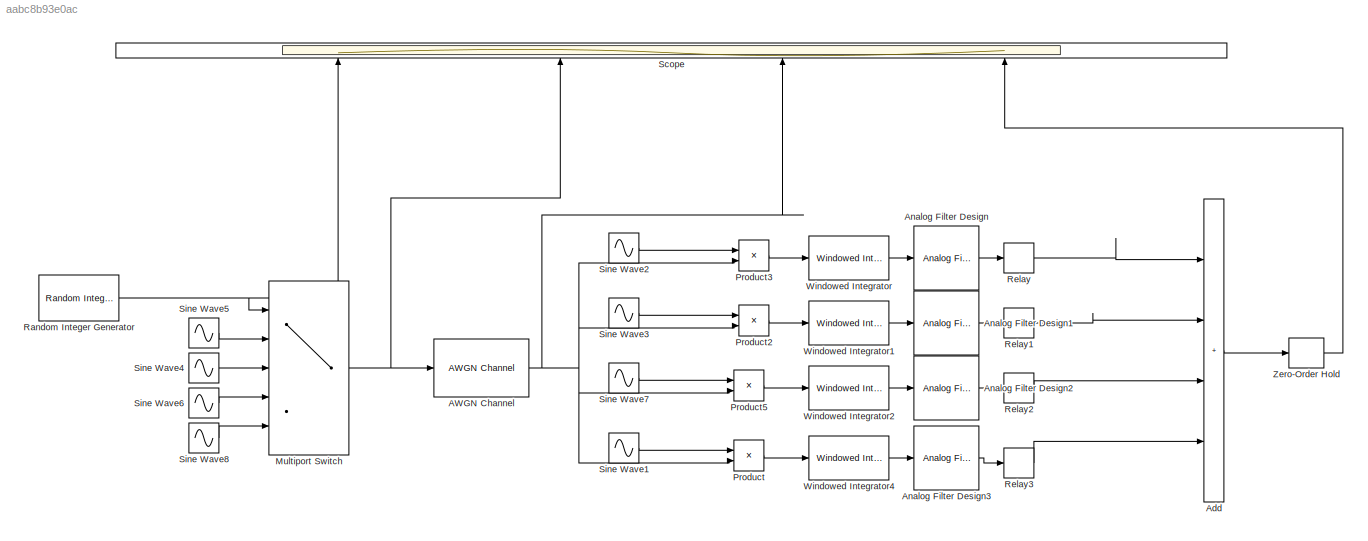
MODEL slx_aabc8b93e0ac
KIND model
CONFIG AbsTol = auto
CONFIG EnableMultiTasking = off
CONFIG FixedStep = auto
CONFIG MaxStep = auto
CONFIG MinStep = auto
CONFIG RelTol = 1e-3
CONFIG SampleTimeConstraint = Unconstrained
CONFIG SolverName = VariableStepAuto
CONFIG StartTime = 0.0
CONFIG StopTime = 0.001250
BLOCK [Reference] AWGN Channel  REF=commchan3/AWGN
Channel
  Ports = [1, 1]
  SourceBlock = commchan3/AWGN\nChannel
  SourceProductBaseCode = CM
  SourceType = AWGN Channel
  UserDataPersistent = on
BLOCK [Sum] Add
  IconShape = rectangular
  Inputs = ++++
  Ports = [4, 1]
BLOCK [Reference] Analog Filter Design  REF=dsparch4/Analog
Filter Design
  Ports = [1, 1]
  SourceBlock = dsparch4/Analog\nFilter Design
  SourceProductBaseCode = DS
  SourceType = Analog Filter Design
BLOCK [Reference] Analog Filter Design1  REF=dsparch4/Analog
Filter Design
  Ports = [1, 1]
  SourceBlock = dsparch4/Analog\nFilter Design
  SourceProductBaseCode = DS
  SourceType = Analog Filter Design
BLOCK [Reference] Analog Filter Design2  REF=dsparch4/Analog
Filter Design
  Ports = [1, 1]
  SourceBlock = dsparch4/Analog\nFilter Design
  SourceProductBaseCode = DS
  SourceType = Analog Filter Design
BLOCK [Reference] Analog Filter Design3  REF=dsparch4/Analog
Filter Design
  Ports = [1, 1]
  SourceBlock = dsparch4/Analog\nFilter Design
  SourceProductBaseCode = DS
  SourceType = Analog Filter Design
BLOCK [MultiPortSwitch] Multiport Switch
  DataPortOrder = Zero-based contiguous
  InputSameDT = off
  Inputs = 4
  Ports = [5, 1]
  SaturateOnIntegerOverflow = off
  zeroidx = on
BLOCK [Product] Product
  Ports = [2, 1]
BLOCK [Product] Product2
  Ports = [2, 1]
BLOCK [Product] Product3
  Ports = [2, 1]
BLOCK [Product] Product5
  Ports = [2, 1]
BLOCK [Reference] Random Integer Generator  REF=commrandsrc3/Random Integer
Generator
  Ports = [0, 1]
  SourceBlock = commrandsrc3/Random Integer\nGenerator
  SourceProductBaseCode = CM
  SourceType = Random Integer Generator
BLOCK [Relay] Relay
  OffSwitchValue = 5
  OnOutputValue = 0
  OnSwitchValue = 15
BLOCK [Relay] Relay1
  OffSwitchValue = 5
  OnSwitchValue = 15
BLOCK [Relay] Relay2
  OffSwitchValue = 5
  OnOutputValue = 2
  OnSwitchValue = 15
BLOCK [Relay] Relay3
  OffSwitchValue = 5
  OnOutputValue = 3
  OnSwitchValue = 15
BLOCK [Scope] Scope
  Floating = off
  NameLocation = right
  NumInputPorts = 4
  Ports = [4]
  ScopeSpecificationString = Simulink.scopes.TimeScopeBlockCfg('CurrentConfiguration', extmgr.ConfigurationSet(extmgr.Configuration('Core','General UI',true),extmgr.Configuration('Core','Source UI',true),extmgr.Configuration('Sources','WiredSimulink',true),extmgr.Configuration('Visuals','Time Domain',true,'SerializedDisplays',{struct('MinYLimReal','-1','MaxYLimReal','4','YLabelReal','','MinYLimMag','0.00000','MaxYLimMag','48....<+3393ch>
BLOCK [Sin] Sine Wave1
  Frequency = 2 * pi * 24 * 1000
  Phase = 3 * pi /2
  Ports = [0, 1]
  SampleTime = 0.000001
BLOCK [Sin] Sine Wave2
  Frequency = 2 * pi * 24 * 1000
  Ports = [0, 1]
  SampleTime = 0.000001
BLOCK [Sin] Sine Wave3
  Frequency = 2 * pi * 24 * 1000
  Phase = pi/2
  Ports = [0, 1]
  SampleTime = 0.000001
BLOCK [Sin] Sine Wave4
  Frequency = 2 * pi * 24 * 1000
  Phase = pi/2
  Ports = [0, 1]
  SampleTime = 0.000001
BLOCK [Sin] Sine Wave5
  Frequency = 2 * pi * 24 * 1000
  Ports = [0, 1]
  SampleTime = 0.000001
BLOCK [Sin] Sine Wave6
  Frequency = 2 * pi * 24 * 1000
  Phase = pi
  Ports = [0, 1]
  SampleTime = 0.000001
BLOCK [Sin] Sine Wave7
  Frequency = 2 * pi * 24 * 1000
  Phase = pi
  Ports = [0, 1]
  SampleTime = 0.000001
BLOCK [Sin] Sine Wave8
  Frequency = 2 * pi * 24 * 1000
  Phase = 3 * pi /2
  Ports = [0, 1]
  SampleTime = 0.000001
BLOCK [Reference] Windowed Integrator  REF=commfilt2/Windowed
Integrator
  Ports = [1, 1]
  SourceBlock = commfilt2/Windowed\nIntegrator
  SourceProductBaseCode = CM
  SourceType = Windowed Integrator
  UserDataPersistent = on
BLOCK [Reference] Windowed Integrator1  REF=commfilt2/Windowed
Integrator
  Ports = [1, 1]
  SourceBlock = commfilt2/Windowed\nIntegrator
  SourceProductBaseCode = CM
  SourceType = Windowed Integrator
  UserDataPersistent = on
BLOCK [Reference] Windowed Integrator2  REF=commfilt2/Windowed
Integrator
  Ports = [1, 1]
  SourceBlock = commfilt2/Windowed\nIntegrator
  SourceProductBaseCode = CM
  SourceType = Windowed Integrator
  UserDataPersistent = on
BLOCK [Reference] Windowed Integrator4  REF=commfilt2/Windowed
Integrator
  Ports = [1, 1]
  SourceBlock = commfilt2/Windowed\nIntegrator
  SourceProductBaseCode = CM
  SourceType = Windowed Integrator
  UserDataPersistent = on
BLOCK [ZeroOrderHold] Zero-Order Hold
  SampleTime = 1/10240
NET AWGN Channel:1 -> Product2:2, Product3:2, Product5:2, Product:2, Scope:3
LINE Add:1 -> Zero-Order Hold:1
LINE Analog Filter Design1:1 -> Relay1:1
LINE Analog Filter Design2:1 -> Relay2:1
LINE Analog Filter Design3:1 -> Relay3:1
LINE Analog Filter Design:1 -> Relay:1
NET Multiport Switch:1 -> AWGN Channel:1, Scope:2
LINE Product2:1 -> Windowed Integrator1:1
LINE Product3:1 -> Windowed Integrator:1
LINE Product5:1 -> Windowed Integrator2:1
LINE Product:1 -> Windowed Integrator4:1
NET Random Integer Generator:1 -> Multiport Switch:1, Scope:1
LINE Relay1:1 -> Add:2
LINE Relay2:1 -> Add:3
LINE Relay3:1 -> Add:4
LINE Relay:1 -> Add:1
LINE Sine Wave1:1 -> Product:1
LINE Sine Wave2:1 -> Product3:1
LINE Sine Wave3:1 -> Product2:1
LINE Sine Wave4:1 -> Multiport Switch:3
LINE Sine Wave5:1 -> Multiport Switch:2
LINE Sine Wave6:1 -> Multiport Switch:4
LINE Sine Wave7:1 -> Product5:1
LINE Sine Wave8:1 -> Multiport Switch:5
LINE Windowed Integrator1:1 -> Analog Filter Design1:1
LINE Windowed Integrator2:1 -> Analog Filter Design2:1
LINE Windowed Integrator4:1 -> Analog Filter Design3:1
LINE Windowed Integrator:1 -> Analog Filter Design:1
LINE Zero-Order Hold:1 -> Scope:4
note: NET lines group one-source signal fan-out (src -> all destinations, sorted); 1:1 wires keep LINE
